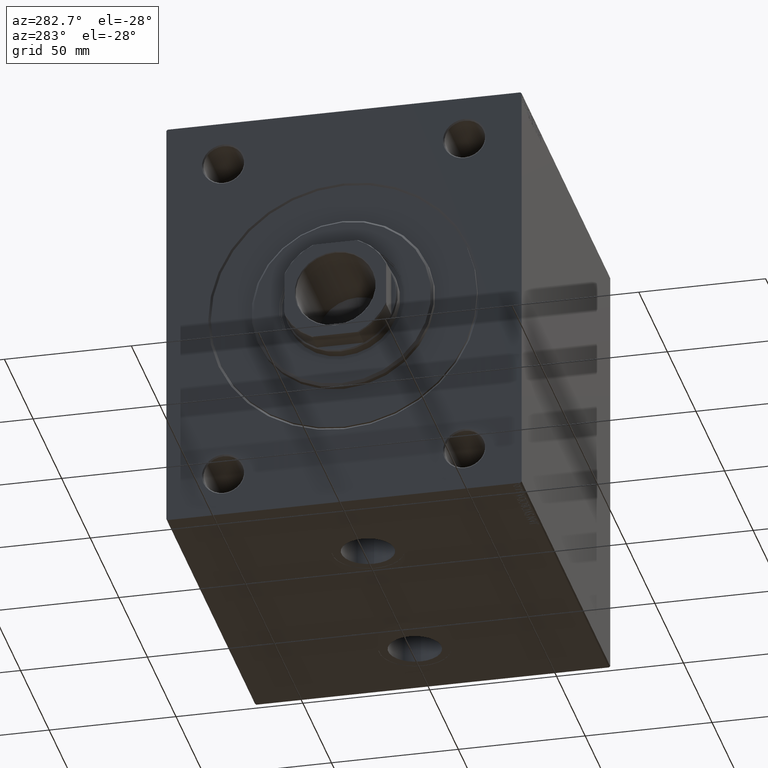
[diagram: clean part render]
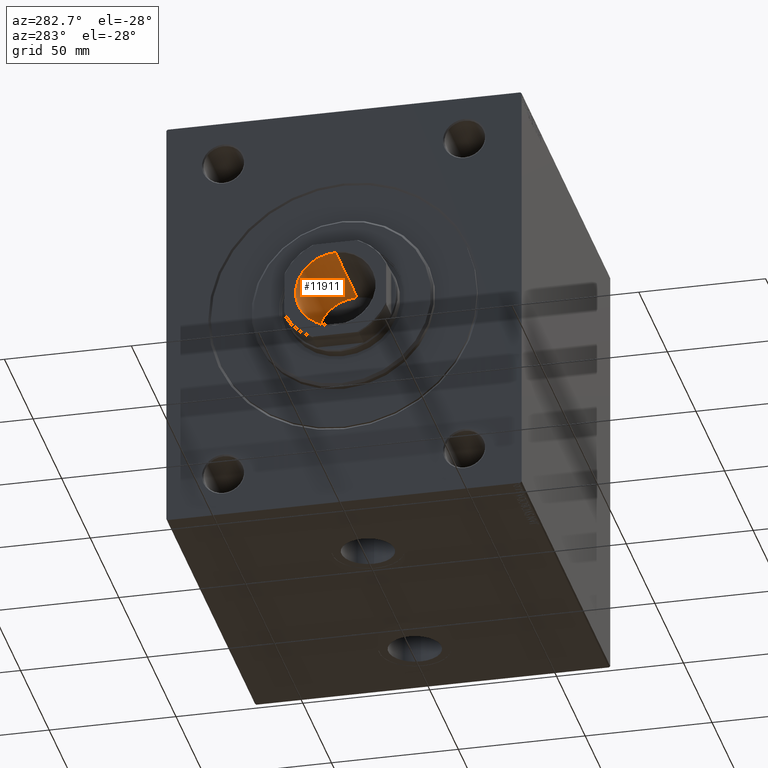
[diagram: same view with one face highlighted and labeled with its STEP entity id]
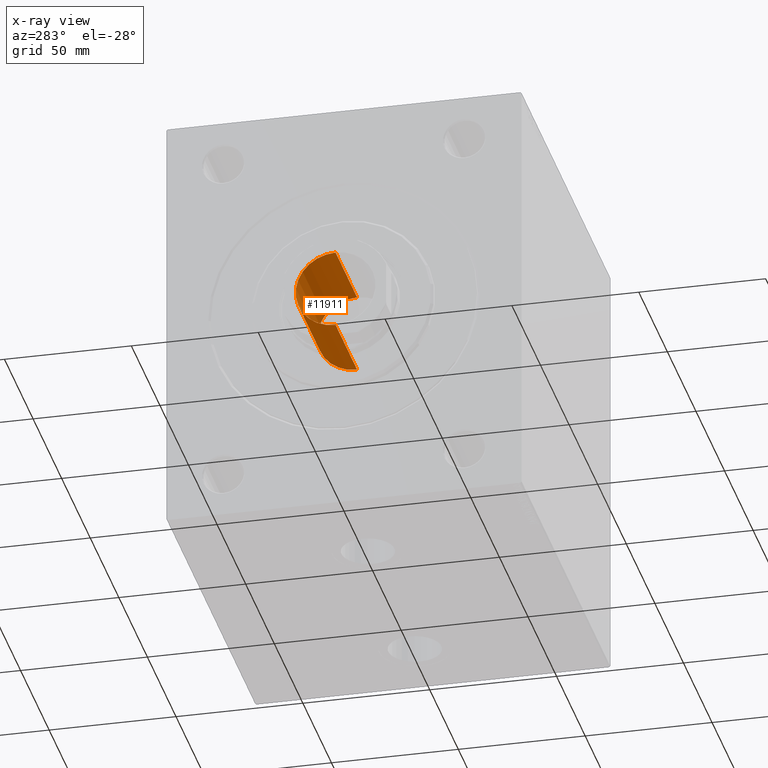
[diagram: x-ray of the same camera — body ghosted, the highlighted face saturated]
A machine part, auxiliary view. The second image highlights one B-rep face of the part: STEP entity #11911.
The next image is the same camera in x-ray: the body ghosted, the highlighted face saturated — about 0% of this face is hidden behind the body in this view.
In plain terms, the highlighted cylindrical surface (partial cylindrical patch) has radius 15.75 mm, axis along (-1, 0, 0).
Its self-contained STEP definition (entity closure, byte-faithful):
#466 = DIRECTION ( 'NONE',  ( 0.000000000000000000, 0.000000000000000000, 1.000000000000000000 ) ) ;
#3543 = DIRECTION ( 'NONE',  ( -0.000000000000000000, -0.000000000000000000, 1.000000000000000000 ) ) ;
#3762 = CARTESIAN_POINT ( 'NONE',  ( 0.000000000000000000, 0.000000000000000000, 106.0000000000000142 ) ) ;
#6418 = CARTESIAN_POINT ( 'NONE',  ( 0.000000000000000000, 0.000000000000000000, 144.0000000000000284 ) ) ;
#9197 = ORIENTED_EDGE ( 'NONE', *, *, #27464, .F. ) ;
#10166 = CARTESIAN_POINT ( 'NONE',  ( 0.000000000000000000, 0.000000000000000000, 143.6999999999999602 ) ) ;
#11911 = ADVANCED_FACE ( 'NONE', ( #38987 ), #24883, .F. ) ;
#12531 = VERTEX_POINT ( 'NONE', #23846 ) ;
#16820 = DIRECTION ( 'NONE',  ( -0.000000000000000000, -0.000000000000000000, 1.000000000000000000 ) ) ;
#16856 = ORIENTED_EDGE ( 'NONE', *, *, #45625, .T. ) ;
#17105 = DIRECTION ( 'NONE',  ( 1.000000000000000000, 0.000000000000000000, 0.000000000000000000 ) ) ;
#17127 = EDGE_CURVE ( 'NONE', #12531, #23392, #45222, .T. ) ;
#17694 = VECTOR ( 'NONE', #16820, 1000.000000000000000 ) ;
#17808 = CARTESIAN_POINT ( 'NONE',  ( 15.74999999999999289, 0.000000000000000000, 143.6999999999999602 ) ) ;
#17842 = DIRECTION ( 'NONE',  ( -0.000000000000000000, -0.000000000000000000, 1.000000000000000000 ) ) ;
#18513 = ORIENTED_EDGE ( 'NONE', *, *, #17127, .F. ) ;
#18670 = CIRCLE ( 'NONE', #23857, 15.74999999999999289 ) ;
#21108 = CARTESIAN_POINT ( 'NONE',  ( -15.74999999999999289, 1.928818708657080556E-15, 144.0000000000000284 ) ) ;
#21725 = CARTESIAN_POINT ( 'NONE',  ( -15.74999999999999289, 1.928818708657080556E-15, 143.6999999999999602 ) ) ;
#23392 = VERTEX_POINT ( 'NONE', #44463 ) ;
#23557 = EDGE_LOOP ( 'NONE', ( #9197, #18513, #44775, #16856 ) ) ;
#23846 = CARTESIAN_POINT ( 'NONE',  ( 15.74999999999999289, 0.000000000000000000, 106.0000000000000142 ) ) ;
#23857 = AXIS2_PLACEMENT_3D ( 'NONE', #10166, #466, #17105 ) ;
#24444 = CARTESIAN_POINT ( 'NONE',  ( 15.74999999999999289, 0.000000000000000000, 144.0000000000000284 ) ) ;
#24883 = CYLINDRICAL_SURFACE ( 'NONE', #30324, 15.74999999999999289 ) ;
#27445 = DIRECTION ( 'NONE',  ( -0.000000000000000000, -0.000000000000000000, 1.000000000000000000 ) ) ;
#27464 = EDGE_CURVE ( 'NONE', #23392, #27973, #32174, .T. ) ;
#27973 = VERTEX_POINT ( 'NONE', #21725 ) ;
#30324 = AXIS2_PLACEMENT_3D ( 'NONE', #6418, #27445, #35525 ) ;
#31943 = DIRECTION ( 'NONE',  ( 1.000000000000000000, 0.000000000000000000, 0.000000000000000000 ) ) ;
#32174 = LINE ( 'NONE', #21108, #44688 ) ;
#32592 = EDGE_CURVE ( 'NONE', #12531, #43644, #42009, .T. ) ;
#35525 = DIRECTION ( 'NONE',  ( 1.000000000000000000, 0.000000000000000000, 0.000000000000000000 ) ) ;
#38987 = FACE_OUTER_BOUND ( 'NONE', #23557, .T. ) ;
#41517 = AXIS2_PLACEMENT_3D ( 'NONE', #3762, #17842, #31943 ) ;
#42009 = LINE ( 'NONE', #24444, #17694 ) ;
#43644 = VERTEX_POINT ( 'NONE', #17808 ) ;
#44463 = CARTESIAN_POINT ( 'NONE',  ( -15.74999999999999289, 1.928818708657080556E-15, 106.0000000000000142 ) ) ;
#44688 = VECTOR ( 'NONE', #3543, 1000.000000000000000 ) ;
#44775 = ORIENTED_EDGE ( 'NONE', *, *, #32592, .T. ) ;
#45222 = CIRCLE ( 'NONE', #41517, 15.74999999999999289 ) ;
#45625 = EDGE_CURVE ( 'NONE', #43644, #27973, #18670, .T. ) ;